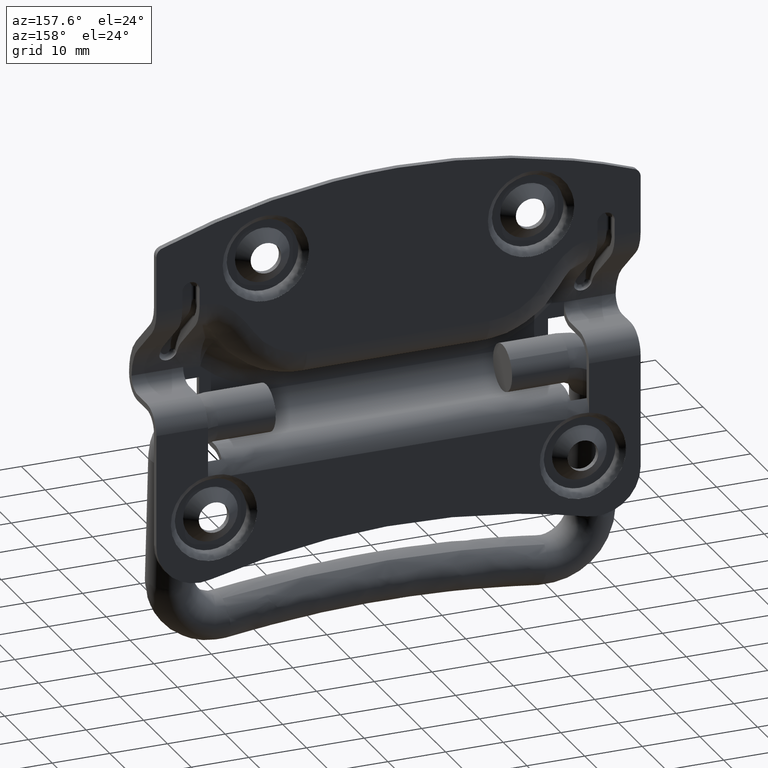
[diagram: clean part render]
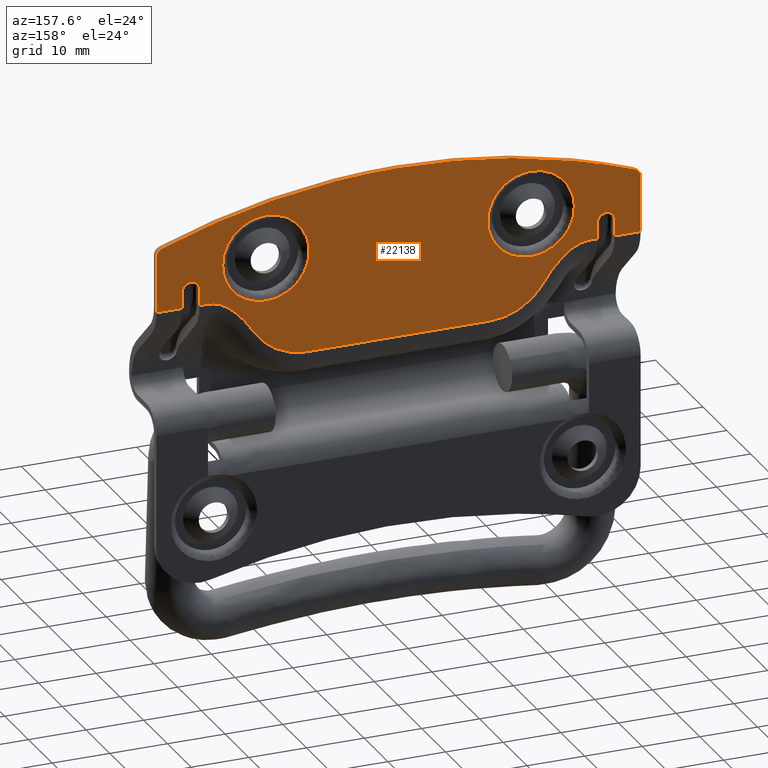
[diagram: same view with one face highlighted and labeled with its STEP entity id]
A machine part, auxiliary view. The second image highlights one B-rep face of the part: STEP entity #22138.
In plain terms, the highlighted face is a freeform B-spline surface patch.
Its self-contained STEP definition (entity closure, byte-faithful):
#6476=CARTESIAN_POINT('',(17.769259972980500,5.935900000000000,23.625117381835992));
#6477=VERTEX_POINT('',#6476);
#6483=CARTESIAN_POINT('',(15.500000000000091,5.935900000000000,28.999998829086010));
#6484=VERTEX_POINT('',#6483);
#6485=CARTESIAN_POINT('',(15.500000000000091,5.935900000000000,28.999998829086010));
#6486=CARTESIAN_POINT('',(15.499918884571841,5.935899999999996,28.407009841563539));
#6487=CARTESIAN_POINT('',(15.656033277567570,5.935900000000000,27.096114785213079));
#6488=CARTESIAN_POINT('',(16.406104786906219,5.935900000000001,25.222611169464471));
#6489=CARTESIAN_POINT('',(17.277026380547571,5.935900000000017,24.103855876040829));
#6490=CARTESIAN_POINT('',(17.769259972980500,5.935900000000000,23.625117381835992));
#6491=B_SPLINE_CURVE_WITH_KNOTS('',3,(#6485,#6486,#6487,#6488,#6489,#6490),.UNSPECIFIED.,.F.,.U.,(4,1,1,4),(0.000000057378784,1.779011872936276,3.932535826126688,5.992451420923902),.UNSPECIFIED.);
#6492=EDGE_CURVE('',#6484,#6477,#6491,.T.);
#6494=CARTESIAN_POINT('',(17.933073603737949,5.935900000000000,34.529579777943717));
#6495=VERTEX_POINT('',#6494);
#6496=CARTESIAN_POINT('',(17.933073603737949,5.935900000000000,34.529579777943717));
#6497=CARTESIAN_POINT('',(17.431509195400189,5.935900000000001,34.070279542396527));
#6498=CARTESIAN_POINT('',(16.700973083781129,5.935899999999989,33.190001134499042));
#6499=CARTESIAN_POINT('',(16.028526829208101,5.935900000000019,31.853861881042310));
#6500=CARTESIAN_POINT('',(15.610086113994461,5.935899999999960,30.521992937244718));
#6501=CARTESIAN_POINT('',(15.499858658085721,5.935900000000021,29.582928138772459));
#6502=CARTESIAN_POINT('',(15.500000000000091,5.935900000000000,28.999998829086010));
#6503=B_SPLINE_CURVE_WITH_KNOTS('',3,(#6496,#6497,#6498,#6499,#6500,#6501,#6502),.UNSPECIFIED.,.F.,.U.,(4,1,1,1,4),(0.000000060649494,2.040217076145432,3.400345785930164,4.469026825644185,6.217779929829488),.UNSPECIFIED.);
#6504=EDGE_CURVE('',#6495,#6484,#6503,.T.);
#6607=CARTESIAN_POINT('',(23.0,5.935900000000000,36.500000000000007));
#6608=VERTEX_POINT('',#6607);
#6609=CARTESIAN_POINT('',(23.0,5.935900000000000,36.500000000000007));
#6610=CARTESIAN_POINT('',(22.333542825881199,5.935900000000022,36.500199926851757));
#6611=CARTESIAN_POINT('',(21.290580506158172,5.935899999999991,36.360006217705461));
#6612=CARTESIAN_POINT('',(19.538449447807899,5.935899999999996,35.736533643312683));
#6613=CARTESIAN_POINT('',(18.530978408904812,5.935900000000017,35.078094485919422));
#6614=CARTESIAN_POINT('',(17.933073603737949,5.935900000000000,34.529579777943717));
#6615=B_SPLINE_CURVE_WITH_KNOTS('',3,(#6609,#6610,#6611,#6612,#6613,#6614),.UNSPECIFIED.,.F.,.U.,(4,1,1,4),(0.000000044872507,1.999312810627147,3.129315080886804,5.563268067913037),.UNSPECIFIED.);
#6616=EDGE_CURVE('',#6608,#6495,#6615,.T.);
#6618=CARTESIAN_POINT('',(30.499999999999911,5.935900000000001,29.000001170913940));
#6619=VERTEX_POINT('',#6618);
#6620=CARTESIAN_POINT('',(30.499999999999911,5.935900000000001,29.000001170913940));
#6621=CARTESIAN_POINT('',(30.500204085442689,5.935900000000006,29.674963949241260));
#6622=CARTESIAN_POINT('',(30.320729361127860,5.935899999999998,30.994078198594728));
#6623=CARTESIAN_POINT('',(29.528014371993429,5.935899999999979,32.875641365994213));
#6624=CARTESIAN_POINT('',(28.394401093014970,5.935900000000057,34.309920186972697));
#6625=CARTESIAN_POINT('',(27.137269566238579,5.935899999999930,35.303146863968763));
#6626=CARTESIAN_POINT('',(25.942371992932220,5.935899999999939,35.941883769264550));
#6627=CARTESIAN_POINT('',(24.564617369517549,5.935900000000098,36.387646485485071));
#6628=CARTESIAN_POINT('',(23.552241324617970,5.935899999999936,36.500112718732623));
#6629=CARTESIAN_POINT('',(23.0,5.935900000000000,36.500000000000007));
#6630=B_SPLINE_CURVE_WITH_KNOTS('',3,(#6620,#6621,#6622,#6623,#6624,#6625,#6626,#6627,#6628,#6629),.UNSPECIFIED.,.F.,.U.,(4,1,1,1,1,1,1,4),(0.000000217225260,2.024844978643030,3.957704447688891,6.074551526184765,7.455157645152864,8.743743618101027,10.124343613202100,11.781045711628339),.UNSPECIFIED.);
#6631=EDGE_CURVE('',#6619,#6608,#6630,.T.);
#6633=CARTESIAN_POINT('',(23.0,5.935900000000000,21.500000000000000));
#6634=VERTEX_POINT('',#6633);
#6635=CARTESIAN_POINT('',(23.0,5.935900000000000,21.500000000000000));
#6636=CARTESIAN_POINT('',(23.674969480276040,5.935899999999991,21.499794664512159));
#6637=CARTESIAN_POINT('',(24.717947500113372,5.935900000000018,21.641780328985899));
#6638=CARTESIAN_POINT('',(26.079288593583801,5.935899999999993,22.128970167747280));
#6639=CARTESIAN_POINT('',(27.080288055943392,5.935899999999989,22.671929929724179));
#6640=CARTESIAN_POINT('',(28.010597112558560,5.935900000000016,23.379773765713232));
#6641=CARTESIAN_POINT('',(28.950451329043830,5.935899999999970,24.354734487544999));
#6642=CARTESIAN_POINT('',(29.717961847151511,5.935900000000062,25.550451101251440));
#6643=CARTESIAN_POINT('',(30.338512917845541,5.935899999999967,27.159382472460191));
#6644=CARTESIAN_POINT('',(30.500295590761539,5.935900000000026,28.294328574937570));
#6645=CARTESIAN_POINT('',(30.499999999999911,5.935900000000001,29.000001170913940));
#6646=B_SPLINE_CURVE_WITH_KNOTS('',3,(#6635,#6636,#6637,#6638,#6639,#6640,#6641,#6642,#6643,#6644,#6645),.UNSPECIFIED.,.F.,.U.,(4,1,1,1,1,1,1,1,4),(0.000000216831340,2.024845205201196,3.129345116943817,4.325889074153297,5.430351993940945,6.626829558275540,8.375576062371929,9.664146553121826,11.781047031529450),.UNSPECIFIED.);
#6647=EDGE_CURVE('',#6634,#6619,#6646,.T.);
#6649=CARTESIAN_POINT('',(17.769259972980500,5.935900000000000,23.625117381835992));
#6650=CARTESIAN_POINT('',(18.244479896865109,5.935899999999994,23.162405288775769));
#6651=CARTESIAN_POINT('',(19.367508983048872,5.935900000000006,22.327909383346839));
#6652=CARTESIAN_POINT('',(21.191016639984561,5.935899999999990,21.637784931193000));
#6653=CARTESIAN_POINT('',(22.457332967514439,5.935900000000020,21.499961057022901));
#6654=CARTESIAN_POINT('',(23.0,5.935900000000000,21.500000000000000));
#6655=B_SPLINE_CURVE_WITH_KNOTS('',3,(#6649,#6650,#6651,#6652,#6653,#6654),.UNSPECIFIED.,.F.,.U.,(4,1,1,4),(0.000000054683503,1.989832355189456,4.160548351264252,5.788594075836008),.UNSPECIFIED.);
#6656=EDGE_CURVE('',#6477,#6634,#6655,.T.);
#6693=CARTESIAN_POINT('',(-28.230740027019500,5.935900000000000,23.625117381835999));
#6694=VERTEX_POINT('',#6693);
#6700=CARTESIAN_POINT('',(-30.499999999999911,5.935900000000000,28.999998829086010));
#6701=VERTEX_POINT('',#6700);
#6702=CARTESIAN_POINT('',(-30.499999999999911,5.935900000000000,28.999998829086010));
#6703=CARTESIAN_POINT('',(-30.500315067971592,5.935900000000014,28.250921072025150));
#6704=CARTESIAN_POINT('',(-30.278501498789350,5.935899999999983,26.784162657057610));
#6705=CARTESIAN_POINT('',(-29.413053869627920,5.935900000000007,24.961058218199781));
#6706=CARTESIAN_POINT('',(-28.611009976232960,5.935900000000006,23.995122307251730));
#6707=CARTESIAN_POINT('',(-28.230740027019500,5.935900000000000,23.625117381835999));
#6708=B_SPLINE_CURVE_WITH_KNOTS('',3,(#6702,#6703,#6704,#6705,#6706,#6707),.UNSPECIFIED.,.F.,.U.,(4,1,1,4),(0.000000057378971,2.247170244492955,4.400704599495102,5.992451420923890),.UNSPECIFIED.);
#6709=EDGE_CURVE('',#6701,#6694,#6708,.T.);
#6711=CARTESIAN_POINT('',(-28.066926396262058,5.935900000000000,34.529579777943717));
#6712=VERTEX_POINT('',#6711);
#6713=CARTESIAN_POINT('',(-28.066926396262058,5.935900000000000,34.529579777943717));
#6714=CARTESIAN_POINT('',(-28.496796249452451,5.935899999999998,34.135860111015738));
#6715=CARTESIAN_POINT('',(-29.157322023474091,5.935900000000007,33.370813878671008));
#6716=CARTESIAN_POINT('',(-29.873405201852300,5.935899999999996,32.095662901282253));
#6717=CARTESIAN_POINT('',(-30.367706180468758,5.935900000000001,30.683891743716220));
#6718=CARTESIAN_POINT('',(-30.500169127002771,5.935899999999998,29.615314275077829));
#6719=CARTESIAN_POINT('',(-30.499999999999911,5.935900000000000,28.999998829086010));
#6720=B_SPLINE_CURVE_WITH_KNOTS('',3,(#6713,#6714,#6715,#6716,#6717,#6718,#6719),.UNSPECIFIED.,.F.,.U.,(4,1,1,1,4),(0.000000060650055,1.748753164818099,3.011769100200975,4.371869304402448,6.217779929829487),.UNSPECIFIED.);
#6721=EDGE_CURVE('',#6712,#6701,#6720,.T.);
#6825=CARTESIAN_POINT('',(-23.0,5.935900000000000,36.500000000000007));
#6826=VERTEX_POINT('',#6825);
#6827=CARTESIAN_POINT('',(-23.0,5.935900000000000,36.500000000000007));
#6828=CARTESIAN_POINT('',(-23.637466800377581,5.935900000000007,36.500144368172982));
#6829=CARTESIAN_POINT('',(-24.854347245930249,5.935900000000001,36.343953951062687));
#6830=CARTESIAN_POINT('',(-26.594320441566730,5.935899999999988,35.667276325556450));
#6831=CARTESIAN_POINT('',(-27.597046580952359,5.935899999999995,34.960375056115282));
#6832=CARTESIAN_POINT('',(-28.066926396262058,5.935900000000000,34.529579777943717));
#6833=B_SPLINE_CURVE_WITH_KNOTS('',3,(#6827,#6828,#6829,#6830,#6831,#6832),.UNSPECIFIED.,.F.,.U.,(4,1,1,4),(0.000000044868693,1.912375400348651,3.650891903971758,5.563268067913037),.UNSPECIFIED.);
#6834=EDGE_CURVE('',#6826,#6712,#6833,.T.);
#6836=CARTESIAN_POINT('',(-15.500000000000091,5.935900000000001,29.000001170913940));
#6837=VERTEX_POINT('',#6836);
#6838=CARTESIAN_POINT('',(-15.500000000000091,5.935900000000001,29.000001170913940));
#6839=CARTESIAN_POINT('',(-15.499493814601850,5.935900000000014,29.828427054105781));
#6840=CARTESIAN_POINT('',(-15.720889644436850,5.935899999999988,31.147255824594811));
#6841=CARTESIAN_POINT('',(-16.516910336544228,5.935900000000018,32.885025100903690));
#6842=CARTESIAN_POINT('',(-17.333194402531738,5.935899999999982,33.971637940578958));
#6843=CARTESIAN_POINT('',(-18.295717184276970,5.935900000000000,34.876745348411312));
#6844=CARTESIAN_POINT('',(-19.257011182804892,5.935900000000000,35.544977202906637));
#6845=CARTESIAN_POINT('',(-20.852762395850590,5.935900000000024,36.276161030840207));
#6846=CARTESIAN_POINT('',(-22.140881141074392,5.935899999999959,36.500556551552862));
#6847=CARTESIAN_POINT('',(-23.0,5.935900000000000,36.500000000000007));
#6848=B_SPLINE_CURVE_WITH_KNOTS('',3,(#6838,#6839,#6840,#6841,#6842,#6843,#6844,#6845,#6846,#6847),.UNSPECIFIED.,.F.,.U.,(4,1,1,1,1,1,1,4),(0.000000217237414,2.485053238020354,3.957704447695405,5.706494620878327,6.534746991231630,7.915366110958642,9.203945041978169,11.781045711628339),.UNSPECIFIED.);
#6849=EDGE_CURVE('',#6837,#6826,#6848,.T.);
#6851=CARTESIAN_POINT('',(-23.0,5.935900000000000,21.500000000000000));
#6852=VERTEX_POINT('',#6851);
#6853=CARTESIAN_POINT('',(-23.0,5.935900000000000,21.500000000000000));
#6854=CARTESIAN_POINT('',(-22.447757805124031,5.935900000000000,21.499892415463531));
#6855=CARTESIAN_POINT('',(-21.527421243123818,5.935900000000002,21.602142109298040));
#6856=CARTESIAN_POINT('',(-20.173252577859198,5.935899999999998,22.012920925373560));
#6857=CARTESIAN_POINT('',(-18.879005305795360,5.935900000000014,22.664249778835430));
#6858=CARTESIAN_POINT('',(-17.751196954586881,5.935899999999988,23.578372167069482));
#6859=CARTESIAN_POINT('',(-16.780680496879722,5.935900000000021,24.731792326590011));
#6860=CARTESIAN_POINT('',(-16.156875280939719,5.935899999999993,25.832929708564141));
#6861=CARTESIAN_POINT('',(-15.637664691981209,5.935900000000005,27.312756288623650));
#6862=CARTESIAN_POINT('',(-15.499757282905280,5.935900000000003,28.325020945900530));
#6863=CARTESIAN_POINT('',(-15.500000000000091,5.935900000000001,29.000001170913940));
#6864=B_SPLINE_CURVE_WITH_KNOTS('',3,(#6853,#6854,#6855,#6856,#6857,#6858,#6859,#6860,#6861,#6862,#6863),.UNSPECIFIED.,.F.,.U.,(4,1,1,1,1,1,1,1,4),(0.000000216830237,1.656706387166283,2.761180379745490,4.233825095445472,5.982497179747187,7.087032475176436,8.743744597689041,9.756203653157478,11.781047031529461),.UNSPECIFIED.);
#6865=EDGE_CURVE('',#6852,#6837,#6864,.T.);
#6867=CARTESIAN_POINT('',(-28.230740027019500,5.935900000000000,23.625117381835999));
#6868=CARTESIAN_POINT('',(-27.906665742992679,5.935900000000002,23.309702993624530));
#6869=CARTESIAN_POINT('',(-27.130751904077538,5.935899999999998,22.680465267422640));
#6870=CARTESIAN_POINT('',(-25.894915994951809,5.935899999999996,22.033347447055348));
#6871=CARTESIAN_POINT('',(-24.477264576916379,5.935900000000021,21.601902535703090));
#6872=CARTESIAN_POINT('',(-23.542685772122461,5.935899999999968,21.499907535348481));
#6873=CARTESIAN_POINT('',(-23.0,5.935900000000000,21.500000000000000));
#6874=B_SPLINE_CURVE_WITH_KNOTS('',3,(#6867,#6868,#6869,#6870,#6871,#6872,#6873),.UNSPECIFIED.,.F.,.U.,(4,1,1,1,4),(0.000000054685751,1.356700625444095,2.984710179607294,4.160548351264429,5.788594075836031),.UNSPECIFIED.);
#6875=EDGE_CURVE('',#6694,#6852,#6874,.T.);
#13323=CARTESIAN_POINT('',(37.500000000000000,5.935900000000000,25.500000000000000));
#13324=VERTEX_POINT('',#13323);
#13332=CARTESIAN_POINT('',(34.500000000000000,5.935900000000000,25.500000000000000));
#13333=VERTEX_POINT('',#13332);
#13339=CARTESIAN_POINT('',(36.0,5.935900000000000,27.0));
#13340=VERTEX_POINT('',#13339);
#13341=CARTESIAN_POINT('',(36.0,5.935900000000000,27.0));
#13342=CARTESIAN_POINT('',(35.779042178421221,5.935899999999994,27.000335476676909));
#13343=CARTESIAN_POINT('',(35.362124299382721,5.935899999999999,26.906133970848281));
#13344=CARTESIAN_POINT('',(34.879710073916279,5.935900000000019,26.548513304153222));
#13345=CARTESIAN_POINT('',(34.573374472018941,5.935899999999968,26.064362291452440));
#13346=CARTESIAN_POINT('',(34.499781038676552,5.935900000000024,25.696385984748400));
#13347=CARTESIAN_POINT('',(34.500000000000000,5.935900000000000,25.500000000000000));
#13348=B_SPLINE_CURVE_WITH_KNOTS('',3,(#13341,#13342,#13343,#13344,#13345,#13346,#13347),.UNSPECIFIED.,.F.,.U.,(4,1,1,1,4),(0.000000420004253,0.662699632699846,1.251730201379149,1.767190317442050,2.356253616589869),.UNSPECIFIED.);
#13349=EDGE_CURVE('',#13340,#13333,#13348,.T.);
#13351=CARTESIAN_POINT('',(37.500000000000000,5.935900000000000,25.500000000000000));
#13352=CARTESIAN_POINT('',(37.500649254719157,5.935899999999995,25.757869841454891));
#13353=CARTESIAN_POINT('',(37.389674224958647,5.935900000000009,26.174367065427258));
#13354=CARTESIAN_POINT('',(37.016850218158687,5.935899999999987,26.640200215901601));
#13355=CARTESIAN_POINT('',(36.564366565794913,5.935900000000010,26.926637943543621));
#13356=CARTESIAN_POINT('',(36.196387158660308,5.935900000000006,27.000217944637221));
#13357=CARTESIAN_POINT('',(36.0,5.935900000000000,27.0));
#13358=B_SPLINE_CURVE_WITH_KNOTS('',3,(#13351,#13352,#13353,#13354,#13355,#13356,#13357),.UNSPECIFIED.,.F.,.U.,(4,1,1,1,4),(0.000000420008107,0.773163082592944,1.251730201380362,1.767190317442640,2.356253616589814),.UNSPECIFIED.);
#13359=EDGE_CURVE('',#13324,#13340,#13358,.T.);
#13472=CARTESIAN_POINT('',(-37.499893012754448,5.935900000000000,25.500000000000000));
#13473=VERTEX_POINT('',#13472);
#13479=CARTESIAN_POINT('',(-35.999893012754598,5.935900000000000,27.0));
#13480=VERTEX_POINT('',#13479);
#13481=CARTESIAN_POINT('',(-35.999893012754598,5.935900000000000,27.0));
#13482=CARTESIAN_POINT('',(-36.183996929934828,5.935900000000004,27.000173278293360));
#13483=CARTESIAN_POINT('',(-36.490657703456492,5.935899999999990,26.942766183846061));
#13484=CARTESIAN_POINT('',(-36.905062431963067,5.935900000000003,26.721308572342881));
#13485=CARTESIAN_POINT('',(-37.171900506489152,5.935900000000003,26.460935393296591));
#13486=CARTESIAN_POINT('',(-37.423958577371252,5.935899999999983,26.051931396791581));
#13487=CARTESIAN_POINT('',(-37.500338010446143,5.935900000000054,25.733280992382038));
#13488=CARTESIAN_POINT('',(-37.499893012754448,5.935900000000000,25.500000000000000));
#13489=B_SPLINE_CURVE_WITH_KNOTS('',3,(#13481,#13482,#13483,#13484,#13485,#13486,#13487,#13488),.UNSPECIFIED.,.F.,.U.,(4,1,1,1,1,4),(0.000000420003858,0.552244428598313,0.920414313004893,1.398983030485091,1.656729578401197,2.356253616589740),.UNSPECIFIED.);
#13490=EDGE_CURVE('',#13480,#13473,#13489,.T.);
#13492=CARTESIAN_POINT('',(-34.499893012754796,5.935900000000000,25.500000000000000));
#13493=VERTEX_POINT('',#13492);
#13494=CARTESIAN_POINT('',(-34.499893012754796,5.935900000000000,25.500000000000000));
#13495=CARTESIAN_POINT('',(-34.499815515274271,5.935900000000003,25.659534785940899));
#13496=CARTESIAN_POINT('',(-34.555171874953857,5.935900000000003,26.003147492245869));
#13497=CARTESIAN_POINT('',(-34.801822498767798,5.935899999999993,26.451460919867120));
#13498=CARTESIAN_POINT('',(-35.174373400416187,5.935900000000013,26.780754543508369));
#13499=CARTESIAN_POINT('',(-35.582663562874622,5.935899999999998,26.961658358380241));
#13500=CARTESIAN_POINT('',(-35.864906809451107,5.935899999999989,27.000036379026000));
#13501=CARTESIAN_POINT('',(-35.999893012754598,5.935900000000000,27.0));
#13502=B_SPLINE_CURVE_WITH_KNOTS('',3,(#13494,#13495,#13496,#13497,#13498,#13499,#13500,#13501),.UNSPECIFIED.,.F.,.U.,(4,1,1,1,1,4),(0.000000420004738,0.478605904940246,1.030904443741355,1.509463944556346,1.951287262134634,2.356253616589618),.UNSPECIFIED.);
#13503=EDGE_CURVE('',#13493,#13480,#13502,.T.);
#13655=CARTESIAN_POINT('',(-34.499893012754796,5.935900000000000,22.661340085509849));
#13656=VERTEX_POINT('',#13655);
#13657=CARTESIAN_POINT('',(-34.499893012754796,5.935900000000000,25.500000000000000));
#13658=CARTESIAN_POINT('',(-34.499893012754796,5.935900000000000,22.661340085509849));
#13659=QUASI_UNIFORM_CURVE('',1,(#13657,#13658),.UNSPECIFIED.,.F.,.U.);
#13660=EDGE_CURVE('',#13493,#13656,#13659,.T.);
#13727=CARTESIAN_POINT('',(-37.499893012754448,5.935900000000000,22.661340085509849));
#13728=VERTEX_POINT('',#13727);
#13739=CARTESIAN_POINT('',(-37.499893012754448,5.935900000000000,25.500000000000000));
#13740=CARTESIAN_POINT('',(-37.499893012754448,5.935900000000000,22.661340085509849));
#13741=QUASI_UNIFORM_CURVE('',1,(#13739,#13740),.UNSPECIFIED.,.F.,.U.);
#13742=EDGE_CURVE('',#13473,#13728,#13741,.T.);
#13850=CARTESIAN_POINT('',(34.500000000000000,5.935900000000000,22.661340085509849));
#13851=VERTEX_POINT('',#13850);
#13861=CARTESIAN_POINT('',(34.500000000000000,5.935900000000000,22.661340085509849));
#13862=CARTESIAN_POINT('',(34.500000000000000,5.935900000000000,25.500000000000000));
#13863=QUASI_UNIFORM_CURVE('',1,(#13861,#13862),.UNSPECIFIED.,.F.,.U.);
#13864=EDGE_CURVE('',#13851,#13333,#13863,.T.);
#13880=CARTESIAN_POINT('',(37.500000000000000,5.935900000000000,22.661340085509849));
#13881=VERTEX_POINT('',#13880);
#13882=CARTESIAN_POINT('',(37.500000000000000,5.935900000000000,22.661340085509849));
#13883=CARTESIAN_POINT('',(37.500000000000000,5.935900000000000,25.500000000000000));
#13884=QUASI_UNIFORM_CURVE('',1,(#13882,#13883),.UNSPECIFIED.,.F.,.U.);
#13885=EDGE_CURVE('',#13881,#13324,#13884,.T.);
#14460=CARTESIAN_POINT('',(41.012680233877148,5.935900000000000,33.773949844685049));
#14461=VERTEX_POINT('',#14460);
#14467=CARTESIAN_POINT('',(0.109985786723967,5.935900000000000,41.0));
#14468=VERTEX_POINT('',#14467);
#14469=CARTESIAN_POINT('',(41.012680233877148,5.935900000000000,33.773949844685049));
#14470=CARTESIAN_POINT('',(21.196211605241086,5.935900000000000,40.980673363639504));
#14471=CARTESIAN_POINT('',(0.109985786723967,5.935900000000000,41.0));
#14479=(BOUNDED_CURVE()B_SPLINE_CURVE(2,(#14469,#14470,#14471),.UNSPECIFIED.,.F.,.U.)CURVE()GEOMETRIC_REPRESENTATION_ITEM()QUASI_UNIFORM_CURVE()RATIONAL_B_SPLINE_CURVE((1.0,0.984909916705744,1.0))REPRESENTATION_ITEM(''));
#14480=EDGE_CURVE('',#14461,#14468,#14479,.T.);
#14506=CARTESIAN_POINT('',(42.0,5.935900000000000,32.364300000000000));
#14507=VERTEX_POINT('',#14506);
#14513=CARTESIAN_POINT('',(42.0,5.935900000000000,32.364300000000000));
#14514=CARTESIAN_POINT('',(42.000116200132183,5.935900000000005,32.536157512619027));
#14515=CARTESIAN_POINT('',(41.943599429751188,5.935899999999997,32.860639383305170));
#14516=CARTESIAN_POINT('',(41.713642177477539,5.935899999999981,33.285339196641587));
#14517=CARTESIAN_POINT('',(41.394276805307221,5.935900000000033,33.594196881009552));
#14518=CARTESIAN_POINT('',(41.138296306681561,5.935899999999982,33.728302950976740));
#14519=CARTESIAN_POINT('',(41.012680233877148,5.935900000000000,33.773949844685049));
#14520=B_SPLINE_CURVE_WITH_KNOTS('',3,(#14513,#14514,#14515,#14516,#14517,#14518,#14519),.UNSPECIFIED.,.F.,.U.,(4,1,1,1,4),(0.000000230417161,0.515552970231492,0.973797783515119,1.432087013441397,1.833068316837092),.UNSPECIFIED.);
#14521=EDGE_CURVE('',#14507,#14461,#14520,.T.);
#14551=CARTESIAN_POINT('',(-0.109985787035444,5.935900000000000,41.0));
#14552=VERTEX_POINT('',#14551);
#14553=CARTESIAN_POINT('',(-41.012777829778649,5.935900000000000,33.773914351710602));
#14554=VERTEX_POINT('',#14553);
#14555=CARTESIAN_POINT('',(-0.109985787035444,5.935900000000000,41.0));
#14556=CARTESIAN_POINT('',(-21.196265133411309,5.935900000000000,40.980673314578404));
#14557=CARTESIAN_POINT('',(-41.012777829778713,5.935900000000000,33.773914351710722));
#14565=(BOUNDED_CURVE()B_SPLINE_CURVE(2,(#14555,#14556,#14557),.UNSPECIFIED.,.F.,.U.)CURVE()GEOMETRIC_REPRESENTATION_ITEM()QUASI_UNIFORM_CURVE()RATIONAL_B_SPLINE_CURVE((1.0,0.984909841818048,1.0))REPRESENTATION_ITEM(''));
#14566=EDGE_CURVE('',#14552,#14554,#14565,.T.);
#14625=CARTESIAN_POINT('',(-41.999893012754548,5.935900000000000,32.382322048592542));
#14626=VERTEX_POINT('',#14625);
#14627=CARTESIAN_POINT('',(-41.012777829778649,5.935900000000000,33.773914351710602));
#14628=CARTESIAN_POINT('',(-41.137152539076133,5.935900000000002,33.728716382741339));
#14629=CARTESIAN_POINT('',(-41.390734713401571,5.935899999999998,33.596293564424457));
#14630=CARTESIAN_POINT('',(-41.708127231727197,5.935900000000008,33.291849768735403));
#14631=CARTESIAN_POINT('',(-41.938739136702601,5.935899999999977,32.873067240483032));
#14632=CARTESIAN_POINT('',(-41.997973282335799,5.935900000000019,32.552473664040683));
#14633=CARTESIAN_POINT('',(-41.999893012754548,5.935900000000000,32.382322048592542));
#14634=B_SPLINE_CURVE_WITH_KNOTS('',3,(#14627,#14628,#14629,#14630,#14631,#14632,#14633),.UNSPECIFIED.,.F.,.U.,(4,1,1,1,4),(0.000000219625538,0.397021530458035,0.850784356433339,1.304503997056033,1.814965152821824),.UNSPECIFIED.);
#14635=EDGE_CURVE('',#14554,#14626,#14634,.T.);
#14693=CARTESIAN_POINT('',(-25.145332745776649,5.935900000000000,16.517794903357800));
#14694=VERTEX_POINT('',#14693);
#14721=CARTESIAN_POINT('',(-26.619803674848800,5.935900000000000,18.549590431377251));
#14722=VERTEX_POINT('',#14721);
#14735=CARTESIAN_POINT('',(-25.145332745776699,5.935900000000000,16.517794903357750));
#14736=CARTESIAN_POINT('',(-25.369525777092260,5.935899999999999,16.872067834676169));
#14737=CARTESIAN_POINT('',(-25.603606146878580,5.935900000000002,17.219165539481889));
#14738=CARTESIAN_POINT('',(-26.094049004586751,5.935900000000001,17.897190849801358));
#14739=CARTESIAN_POINT('',(-26.350396984299898,5.935900000000000,18.228128983900181));
#14740=CARTESIAN_POINT('',(-26.619803674848800,5.935900000000000,18.549590431377251));
#14741=B_SPLINE_CURVE_WITH_KNOTS('',3,(#14735,#14736,#14737,#14738,#14739,#14740),.UNSPECIFIED.,.F.,.U.,(4,2,4),(0.0,0.500000000000000,1.0),.UNSPECIFIED.);
#14742=EDGE_CURVE('',#14694,#14722,#14741,.T.);
#15043=CARTESIAN_POINT('',(-33.176774857387997,5.935900000000000,22.661340085509849));
#15044=VERTEX_POINT('',#15043);
#15054=CARTESIAN_POINT('',(-26.619803674848800,5.935900000000000,18.549590431377251));
#15055=CARTESIAN_POINT('',(-27.459086671600019,5.935900000000000,19.550994835469162));
#15056=CARTESIAN_POINT('',(-28.117617887974070,5.935900000000000,20.199962223574200));
#15057=CARTESIAN_POINT('',(-28.884444903639839,5.935900000000000,20.955652634463998));
#15058=CARTESIAN_POINT('',(-29.637200908411820,5.935900000000000,21.469045277783849));
#15059=CARTESIAN_POINT('',(-31.385004127365999,5.935900000000000,22.661077369053249));
#15060=CARTESIAN_POINT('',(-33.176774857388132,5.935900000000000,22.661340085509849));
#15061=B_SPLINE_CURVE_WITH_KNOTS('',2,(#15054,#15055,#15056,#15057,#15058,#15059,#15060),.UNSPECIFIED.,.F.,.U.,(3,2,2,3),(0.0,0.250000000000000,0.500000000000000,1.0),.UNSPECIFIED.);
#15062=EDGE_CURVE('',#14722,#15044,#15061,.T.);
#15100=CARTESIAN_POINT('',(-15.850190831796199,5.935900000000000,11.400000000000000));
#15101=VERTEX_POINT('',#15100);
#15129=CARTESIAN_POINT('',(-15.850190831796199,5.935900000000000,11.400000000000000));
#15130=CARTESIAN_POINT('',(-16.830615525899180,5.935900000000029,11.399640169917790));
#15131=CARTESIAN_POINT('',(-18.272148339643341,5.935899999999966,11.594103488446409));
#15132=CARTESIAN_POINT('',(-20.294573742220798,5.935900000000021,12.287529299394089));
#15133=CARTESIAN_POINT('',(-22.034670190272891,5.935899999999974,13.210038904205170));
#15134=CARTESIAN_POINT('',(-23.776813245360820,5.935900000000047,14.653991785337370));
#15135=CARTESIAN_POINT('',(-24.744508748005259,5.935899999999982,15.884238133046569));
#15136=CARTESIAN_POINT('',(-25.145332745776649,5.935900000000000,16.517794903357800));
#15137=B_SPLINE_CURVE_WITH_KNOTS('',3,(#15129,#15130,#15131,#15132,#15133,#15134,#15135,#15136),.UNSPECIFIED.,.F.,.U.,(4,1,1,1,1,4),(0.000000038343476,2.941158984650675,4.325259791602300,6.401317110616430,8.823480790573338,11.072596332196850),.UNSPECIFIED.);
#15138=EDGE_CURVE('',#15101,#14694,#15137,.T.);
#15165=CARTESIAN_POINT('',(-41.999893012754548,5.935900000000000,22.661340085509849));
#15166=VERTEX_POINT('',#15165);
#15176=CARTESIAN_POINT('',(-37.499893012754448,5.935900000000000,22.661340085509849));
#15177=CARTESIAN_POINT('',(-41.999893012754548,5.935900000000000,22.661340085509849));
#15178=QUASI_UNIFORM_CURVE('',1,(#15176,#15177),.UNSPECIFIED.,.F.,.U.);
#15179=EDGE_CURVE('',#13728,#15166,#15178,.T.);
#15198=CARTESIAN_POINT('',(15.850297819041700,5.935900000000000,11.400000000000000));
#15199=VERTEX_POINT('',#15198);
#15221=CARTESIAN_POINT('',(15.850297819041700,5.935900000000000,11.400000000000000));
#15222=CARTESIAN_POINT('',(-15.850190831796199,5.935900000000000,11.400000000000000));
#15223=QUASI_UNIFORM_CURVE('',1,(#15221,#15222),.UNSPECIFIED.,.F.,.U.);
#15224=EDGE_CURVE('',#15199,#15101,#15223,.T.);
#15246=CARTESIAN_POINT('',(25.145439733022101,5.935900000000000,16.517794903357750));
#15247=VERTEX_POINT('',#15246);
#15275=CARTESIAN_POINT('',(25.145439733022101,5.935900000000000,16.517794903357750));
#15276=CARTESIAN_POINT('',(24.621465479184959,5.935899999999996,15.689129415499290));
#15277=CARTESIAN_POINT('',(23.686285966586400,5.935900000000019,14.575008050258770));
#15278=CARTESIAN_POINT('',(22.018860036755409,5.935899999999988,13.236812931638079));
#15279=CARTESIAN_POINT('',(20.509954965354549,5.935900000000006,12.374805499851400));
#15280=CARTESIAN_POINT('',(18.387584317208589,5.935899999999976,11.609652715074571));
#15281=CARTESIAN_POINT('',(16.830723122048649,5.935900000000017,11.399639880653110));
#15282=CARTESIAN_POINT('',(15.850297819041700,5.935900000000000,11.400000000000000));
#15283=B_SPLINE_CURVE_WITH_KNOTS('',3,(#15275,#15276,#15277,#15278,#15279,#15280,#15281,#15282),.UNSPECIFIED.,.F.,.U.,(4,1,1,1,1,4),(0.000000038342957,2.941158984650483,4.325259791602148,6.401317110616175,8.131437385888983,11.072596332196779),.UNSPECIFIED.);
#15284=EDGE_CURVE('',#15247,#15199,#15283,.T.);
#15337=CARTESIAN_POINT('',(26.619910662094249,5.935900000000000,18.549590431377251));
#15338=VERTEX_POINT('',#15337);
#15363=CARTESIAN_POINT('',(26.619910662094249,5.935900000000000,18.549590431377251));
#15364=CARTESIAN_POINT('',(26.350503971545351,5.935899999999999,18.228128983900170));
#15365=CARTESIAN_POINT('',(26.094155991832260,5.935900000000002,17.897190849801330));
#15366=CARTESIAN_POINT('',(25.603713134124060,5.935900000000001,17.219165539481839));
#15367=CARTESIAN_POINT('',(25.369632764337670,5.935900000000000,16.872067834676169));
#15368=CARTESIAN_POINT('',(25.145439733022101,5.935900000000000,16.517794903357750));
#15369=B_SPLINE_CURVE_WITH_KNOTS('',3,(#15363,#15364,#15365,#15366,#15367,#15368),.UNSPECIFIED.,.F.,.U.,(4,2,4),(0.0,0.500000000000000,1.0),.UNSPECIFIED.);
#15370=EDGE_CURVE('',#15338,#15247,#15369,.T.);
#15643=CARTESIAN_POINT('',(33.176881844633407,5.935900000000000,22.661340085509948));
#15644=VERTEX_POINT('',#15643);
#15672=CARTESIAN_POINT('',(33.176881844633407,5.935900000000000,22.661340085509948));
#15673=CARTESIAN_POINT('',(31.385771700620960,5.935900000000000,22.661077465915099));
#15674=CARTESIAN_POINT('',(29.637307895656999,5.935900000000000,21.469045277783849));
#15675=CARTESIAN_POINT('',(28.885741833542980,5.935900000000000,20.956657812282561));
#15676=CARTESIAN_POINT('',(28.117724875219022,5.935900000000000,20.199962223574239));
#15677=CARTESIAN_POINT('',(27.459884386886070,5.935900000000000,19.551818988975921));
#15678=CARTESIAN_POINT('',(26.619910662094249,5.935900000000000,18.549590431377251));
#15679=B_SPLINE_CURVE_WITH_KNOTS('',2,(#15672,#15673,#15674,#15675,#15676,#15677,#15678),.UNSPECIFIED.,.F.,.U.,(3,2,2,3),(0.0,0.500000000000000,0.750000000000000,1.0),.UNSPECIFIED.);
#15680=EDGE_CURVE('',#15644,#15338,#15679,.T.);
#15700=CARTESIAN_POINT('',(42.0,5.935900000000000,22.661340085509849));
#15701=VERTEX_POINT('',#15700);
#15702=CARTESIAN_POINT('',(42.0,5.935900000000000,22.661340085509849));
#15703=CARTESIAN_POINT('',(37.500000000000000,5.935900000000000,22.661340085509849));
#15704=QUASI_UNIFORM_CURVE('',1,(#15702,#15703),.UNSPECIFIED.,.F.,.U.);
#15705=EDGE_CURVE('',#15701,#13881,#15704,.T.);
#21228=CARTESIAN_POINT('',(0.109985786723967,5.935900000000000,41.0));
#21229=CARTESIAN_POINT('',(-0.109985787035444,5.935900000000000,41.0));
#21230=QUASI_UNIFORM_CURVE('',1,(#21228,#21229),.UNSPECIFIED.,.F.,.U.);
#21231=EDGE_CURVE('',#14468,#14552,#21230,.T.);
#21660=CARTESIAN_POINT('',(-41.999893012754548,5.935900000000000,22.661340085509849));
#21661=CARTESIAN_POINT('',(-41.999893012754548,5.935900000000000,32.382322048592542));
#21662=QUASI_UNIFORM_CURVE('',1,(#21660,#21661),.UNSPECIFIED.,.F.,.U.);
#21663=EDGE_CURVE('',#15166,#14626,#21662,.T.);
#21756=CARTESIAN_POINT('',(42.0,5.935900000000000,22.661340085509849));
#21757=CARTESIAN_POINT('',(42.0,5.935900000000000,32.364300000000000));
#21758=QUASI_UNIFORM_CURVE('',1,(#21756,#21757),.UNSPECIFIED.,.F.,.U.);
#21759=EDGE_CURVE('',#15701,#14507,#21758,.T.);
#22081=CARTESIAN_POINT('',(-46.195688294464453,5.935900000000000,42.478519942629461));
#22082=CARTESIAN_POINT('',(-46.195688294464453,5.935900000000000,9.921479263436677));
#22083=CARTESIAN_POINT('',(46.195796783745038,5.935900000000000,42.478519942629461));
#22084=CARTESIAN_POINT('',(46.195796783745038,5.935900000000000,9.921479263436677));
#22085=B_SPLINE_SURFACE_WITH_KNOTS('',1,1,((#22081,#22083),(#22082,#22084)),.UNSPECIFIED.,.F.,.F.,.U.,(2,2),(2,2),(0.0,32.557040679192781),(0.0,92.391485078209485),.UNSPECIFIED.);
#22086=ORIENTED_EDGE('',*,*,#13660,.F.);
#22087=ORIENTED_EDGE('',*,*,#13503,.T.);
#22088=ORIENTED_EDGE('',*,*,#13490,.T.);
#22089=ORIENTED_EDGE('',*,*,#13742,.T.);
#22090=ORIENTED_EDGE('',*,*,#15179,.T.);
#22091=ORIENTED_EDGE('',*,*,#21663,.T.);
#22092=ORIENTED_EDGE('',*,*,#14635,.F.);
#22093=ORIENTED_EDGE('',*,*,#14566,.F.);
#22094=ORIENTED_EDGE('',*,*,#21231,.F.);
#22095=ORIENTED_EDGE('',*,*,#14480,.F.);
#22096=ORIENTED_EDGE('',*,*,#14521,.F.);
#22097=ORIENTED_EDGE('',*,*,#21759,.F.);
#22098=ORIENTED_EDGE('',*,*,#15705,.T.);
#22099=ORIENTED_EDGE('',*,*,#13885,.T.);
#22100=ORIENTED_EDGE('',*,*,#13359,.T.);
#22101=ORIENTED_EDGE('',*,*,#13349,.T.);
#22102=ORIENTED_EDGE('',*,*,#13864,.F.);
#22103=CARTESIAN_POINT('',(34.500000000000000,5.935900000000000,22.661340085509849));
#22104=CARTESIAN_POINT('',(33.176881844633407,5.935900000000000,22.661340085509948));
#22105=QUASI_UNIFORM_CURVE('',1,(#22103,#22104),.UNSPECIFIED.,.F.,.U.);
#22106=EDGE_CURVE('',#13851,#15644,#22105,.T.);
#22107=ORIENTED_EDGE('',*,*,#22106,.T.);
#22108=ORIENTED_EDGE('',*,*,#15680,.T.);
#22109=ORIENTED_EDGE('',*,*,#15370,.T.);
#22110=ORIENTED_EDGE('',*,*,#15284,.T.);
#22111=ORIENTED_EDGE('',*,*,#15224,.T.);
#22112=ORIENTED_EDGE('',*,*,#15138,.T.);
#22113=ORIENTED_EDGE('',*,*,#14742,.T.);
#22114=ORIENTED_EDGE('',*,*,#15062,.T.);
#22115=CARTESIAN_POINT('',(-33.176774857387997,5.935900000000000,22.661340085509849));
#22116=CARTESIAN_POINT('',(-34.499893012754796,5.935900000000000,22.661340085509849));
#22117=QUASI_UNIFORM_CURVE('',1,(#22115,#22116),.UNSPECIFIED.,.F.,.U.);
#22118=EDGE_CURVE('',#15044,#13656,#22117,.T.);
#22119=ORIENTED_EDGE('',*,*,#22118,.T.);
#22120=EDGE_LOOP('',(#22086,#22087,#22088,#22089,#22090,#22091,#22092,#22093,#22094,#22095,#22096,#22097,#22098,#22099,#22100,#22101,#22102,#22107,#22108,#22109,#22110,#22111,#22112,#22113,#22114,#22119));
#22121=FACE_OUTER_BOUND('',#22120,.T.);
#22122=ORIENTED_EDGE('',*,*,#6865,.T.);
#22123=ORIENTED_EDGE('',*,*,#6849,.T.);
#22124=ORIENTED_EDGE('',*,*,#6834,.T.);
#22125=ORIENTED_EDGE('',*,*,#6721,.T.);
#22126=ORIENTED_EDGE('',*,*,#6709,.T.);
#22127=ORIENTED_EDGE('',*,*,#6875,.T.);
#22128=EDGE_LOOP('',(#22122,#22123,#22124,#22125,#22126,#22127));
#22129=FACE_BOUND('',#22128,.T.);
#22130=ORIENTED_EDGE('',*,*,#6647,.T.);
#22131=ORIENTED_EDGE('',*,*,#6631,.T.);
#22132=ORIENTED_EDGE('',*,*,#6616,.T.);
#22133=ORIENTED_EDGE('',*,*,#6504,.T.);
#22134=ORIENTED_EDGE('',*,*,#6492,.T.);
#22135=ORIENTED_EDGE('',*,*,#6656,.T.);
#22136=EDGE_LOOP('',(#22130,#22131,#22132,#22133,#22134,#22135));
#22137=FACE_BOUND('',#22136,.T.);
#22138=ADVANCED_FACE('',(#22121,#22129,#22137),#22085,.F.);